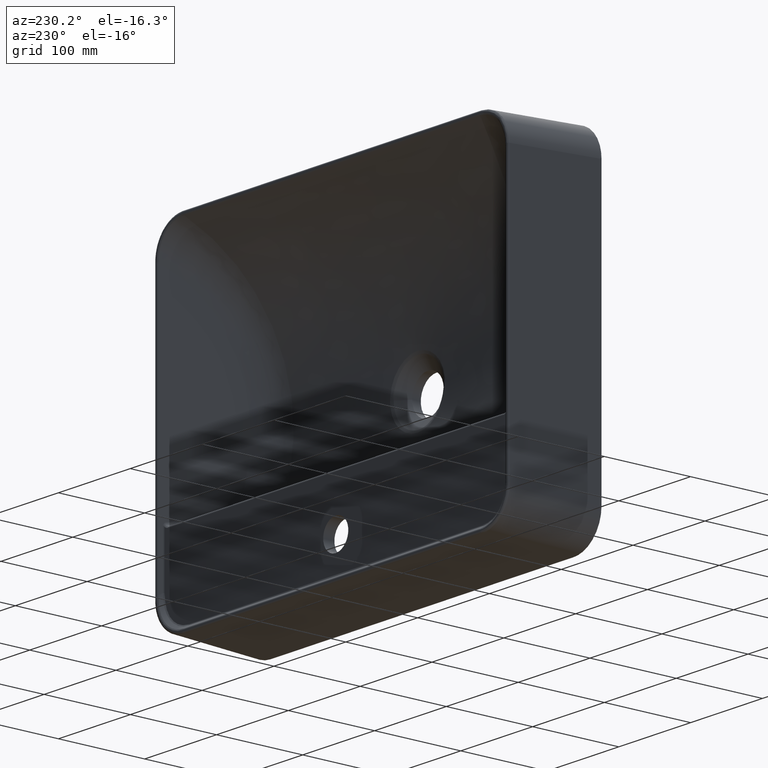
[diagram: clean part render]
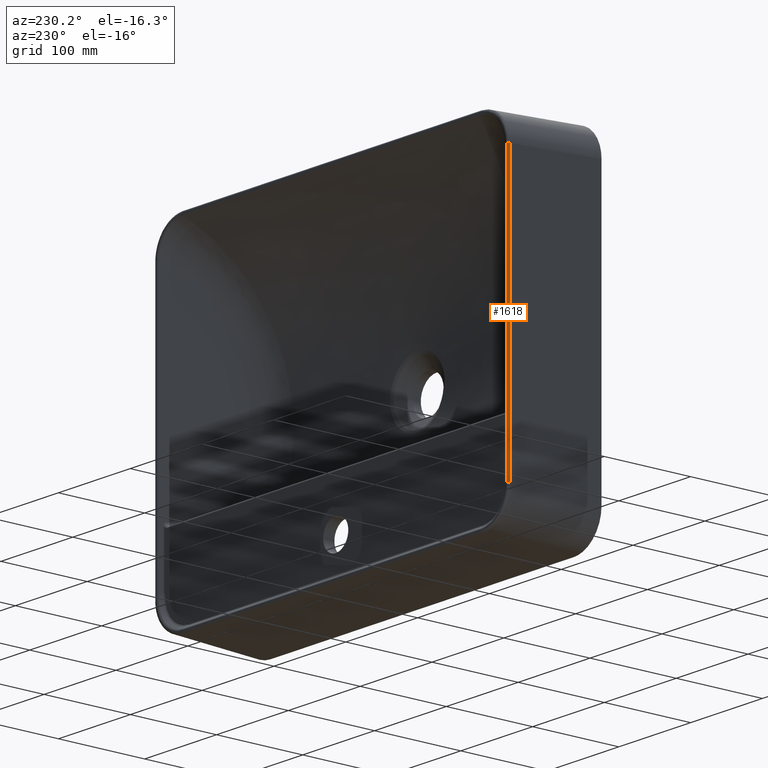
[diagram: same view with one face highlighted and labeled with its STEP entity id]
A machine part, auxiliary view. The second image highlights one B-rep face of the part: STEP entity #1618.
In plain terms, the highlighted cylindrical surface (edge-blend (fillet) strip) has radius 2 mm, axis along (0, 0, 1).
Its self-contained STEP definition (entity closure, byte-faithful):
#411 = CARTESIAN_POINT ( 'NONE',  ( -246.4007233077899741, 98.06979899340500140, 157.4244810540465949 ) ) ;
#772 = DIRECTION ( 'NONE',  ( 3.630259216921277923E-15, 0.000000000000000000, 1.000000000000000000 ) ) ;
#871 = DIRECTION ( 'NONE',  ( 3.491481338843133355E-15, 0.000000000000000000, 1.000000000000000000 ) ) ;
#1618 = ADVANCED_FACE ( 'NONE', ( #4259 ), #11617, .T. ) ;
#3274 = EDGE_CURVE ( 'NONE', #4103, #5967, #6923, .T. ) ;
#4103 = VERTEX_POINT ( 'NONE', #5535 ) ;
#4259 = FACE_OUTER_BOUND ( 'NONE', #12925, .T. ) ;
#4600 = EDGE_CURVE ( 'NONE', #5967, #14791, #12448, .T. ) ;
#4889 = CARTESIAN_POINT ( 'NONE',  ( -244.4019416537529139, 98.00000000000000000, -157.4244810540449180 ) ) ;
#5428 = DIRECTION ( 'NONE',  ( -3.630259216921277923E-15, 7.699026879608002135E-34, -1.000000000000000000 ) ) ;
#5497 = AXIS2_PLACEMENT_3D ( 'NONE', #5823, #871, #9373 ) ;
#5535 = CARTESIAN_POINT ( 'NONE',  ( -244.4019416537529139, 100.0000000000000000, -157.4244810540449180 ) ) ;
#5568 = CIRCLE ( 'NONE', #12000, 2.000000000000001776 ) ;
#5823 = CARTESIAN_POINT ( 'NONE',  ( -244.4019416537517486, 98.00000000000000000, 157.4244810540465949 ) ) ;
#5967 = VERTEX_POINT ( 'NONE', #14239 ) ;
#6923 = LINE ( 'NONE', #11831, #12171 ) ;
#8248 = LINE ( 'NONE', #10440, #15884 ) ;
#8381 = ORIENTED_EDGE ( 'NONE', *, *, #15313, .T. ) ;
#9373 = DIRECTION ( 'NONE',  ( 1.000000000000000000, 0.000000000000000000, 0.000000000000000000 ) ) ;
#9465 = VERTEX_POINT ( 'NONE', #11422 ) ;
#9901 = DIRECTION ( 'NONE',  ( 1.000000000000000000, 0.000000000000000000, 0.000000000000000000 ) ) ;
#10440 = CARTESIAN_POINT ( 'NONE',  ( -246.4007233077911394, 98.06979899340501561, -157.3570769496208470 ) ) ;
#10747 = ORIENTED_EDGE ( 'NONE', *, *, #4600, .F. ) ;
#11422 = CARTESIAN_POINT ( 'NONE',  ( -246.4007233077911394, 98.06979899340501561, -157.4244810540449180 ) ) ;
#11617 = CYLINDRICAL_SURFACE ( 'NONE', #14797, 2.000000000000001776 ) ;
#11831 = CARTESIAN_POINT ( 'NONE',  ( -244.4019416537517486, 100.0000000000000000, 157.3570769496223818 ) ) ;
#11911 = DIRECTION ( 'NONE',  ( 3.630259216921277923E-15, -0.000000000000000000, 1.000000000000000000 ) ) ;
#12000 = AXIS2_PLACEMENT_3D ( 'NONE', #4889, #13531, #9901 ) ;
#12171 = VECTOR ( 'NONE', #11911, 1000.000000000000000 ) ;
#12448 = CIRCLE ( 'NONE', #5497, 2.000000000000001776 ) ;
#12750 = ORIENTED_EDGE ( 'NONE', *, *, #15745, .F. ) ;
#12925 = EDGE_LOOP ( 'NONE', ( #8381, #12750, #10747, #13387 ) ) ;
#13387 = ORIENTED_EDGE ( 'NONE', *, *, #3274, .F. ) ;
#13531 = DIRECTION ( 'NONE',  ( 3.491481338843133355E-15, 0.000000000000000000, 1.000000000000000000 ) ) ;
#14204 = DIRECTION ( 'NONE',  ( 1.000000000000000000, 0.000000000000000000, -3.630259216921268457E-15 ) ) ;
#14239 = CARTESIAN_POINT ( 'NONE',  ( -244.4019416537517486, 100.0000000000000000, 157.4244810540465949 ) ) ;
#14286 = CARTESIAN_POINT ( 'NONE',  ( -244.4019416537523455, 98.00000000000000000, 8.872424013219908623E-13 ) ) ;
#14791 = VERTEX_POINT ( 'NONE', #411 ) ;
#14797 = AXIS2_PLACEMENT_3D ( 'NONE', #14286, #772, #14204 ) ;
#15313 = EDGE_CURVE ( 'NONE', #4103, #9465, #5568, .T. ) ;
#15745 = EDGE_CURVE ( 'NONE', #14791, #9465, #8248, .T. ) ;
#15884 = VECTOR ( 'NONE', #5428, 1000.000000000000000 ) ;